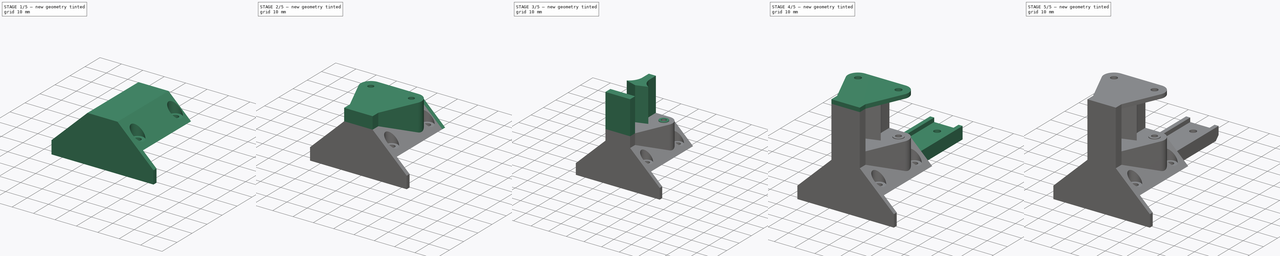
[diagram: build sequence overview — one tinted view per stage of 5, left to right]
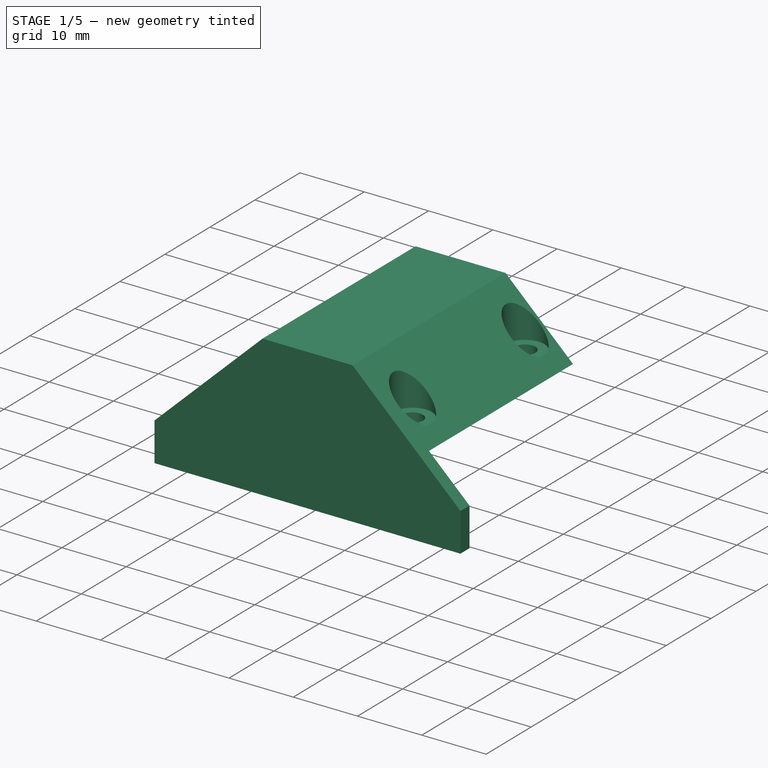
[diagram: stage 1 of 5 — iso view after this stage's code; geometry added in this stage tinted green]
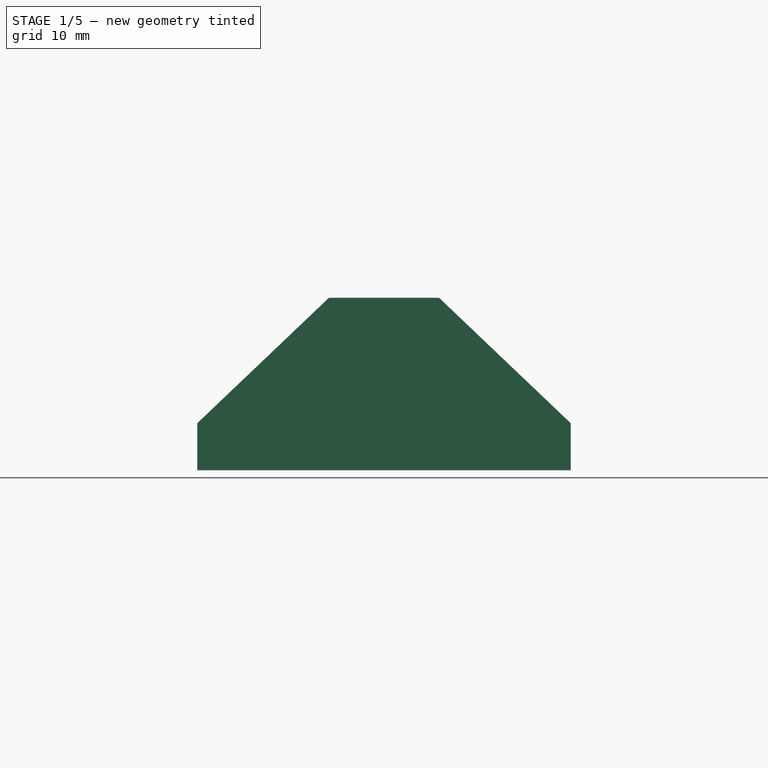
[diagram: stage 1 of 5 — front view after this stage's code; geometry added in this stage tinted green]
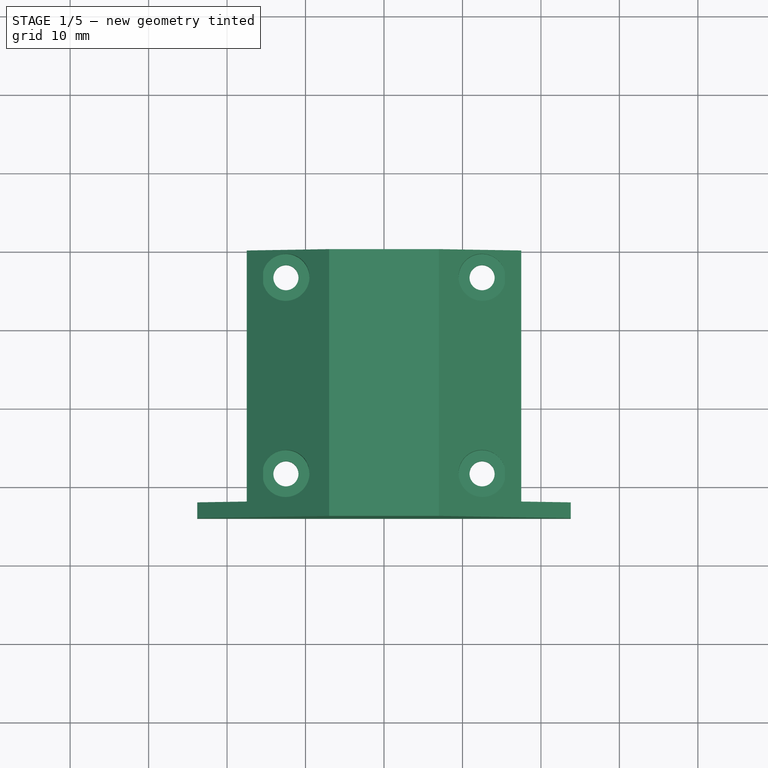
[diagram: stage 1 of 5 — top view after this stage's code; geometry added in this stage tinted green]
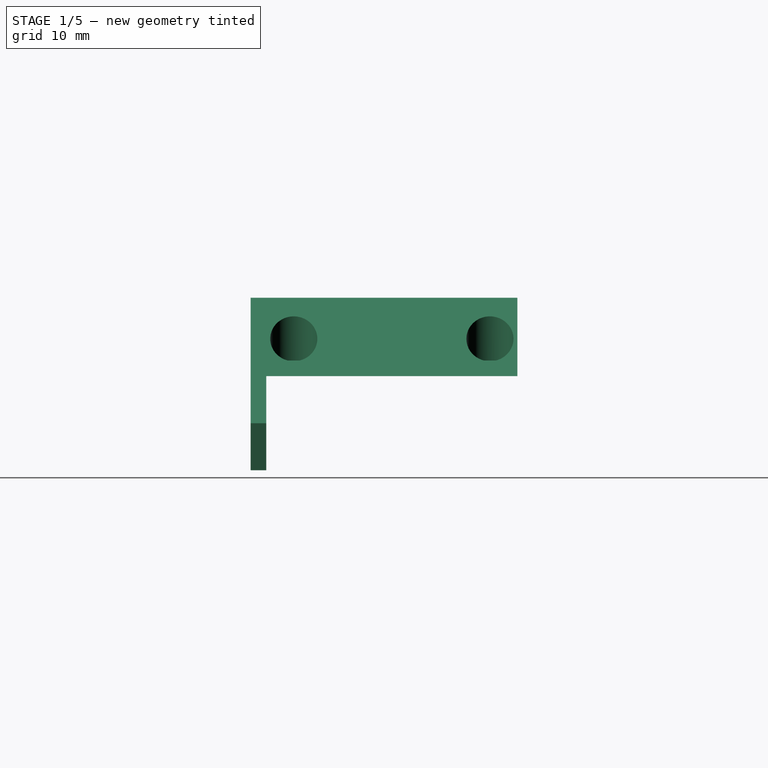
[diagram: stage 1 of 5 — right view after this stage's code; geometry added in this stage tinted green]
FCSTD DOCUMENT  (FreeCAD 0.18.1R)
Label: Rail Base
License: All rights reserved
LicenseURL: http://en.wikipedia.org/wiki/All_rights_reserved
objects: Sketcher::SketchObject×18, PartDesign::Pad×12, PartDesign::Pocket×6, PartDesign::Chamfer×3, PartDesign::Mirrored×1, Spreadsheet::Sheet×1, PartDesign::Body×1
note: 59 computed .brp shape members not serialized (recipe doc carries the construction recipe); baked Part::Feature solids carry a one-line shape summary decoded from their .brp

FEATURE [Sketcher::SketchObject] Sketch  label="Sketch Base"
  MapMode = 5
  Placement = pos=(0,0,0) rot=(1,0,0;1.5708rad)
  Support = -> [XZ_Plane]
  sketch-geometry (8):
    g0: LineSegment StartX=17.5 StartY=0 StartZ=0 EndX=7 EndY=10 EndZ=0
    g1: LineSegment StartX=7 StartY=10 StartZ=0 EndX=-7 EndY=10 EndZ=0
    g2: LineSegment StartX=-7 StartY=10 StartZ=0 EndX=-17.5 EndY=0 EndZ=0
    g3: LineSegment StartX=-17.5 StartY=0 StartZ=0 EndX=-6 EndY=0 EndZ=0
    g4: LineSegment StartX=-6 StartY=0 StartZ=0 EndX=-6 EndY=8 EndZ=0
    g5: LineSegment StartX=-6 StartY=8 StartZ=0 EndX=6 EndY=8 EndZ=0
    g6: LineSegment StartX=6 StartY=8 StartZ=0 EndX=6 EndY=0 EndZ=0
    g7: LineSegment StartX=6 StartY=0 StartZ=0 EndX=17.5 EndY=0 EndZ=0
  constraints (24):
    c: PointOnObject(g2,g-1)
    c: PointOnObject(g0,g-1)
    c: Coincident(g0,g1)
    c: Horizontal(g1)
    c: Coincident(g1,g2)
    c: Equal(g2,g0)
    c: Distance(g1) = 14
    c: Distance(g0,g-1) = 17.5
    c: Coincident(g2,g3)
    c: PointOnObject(g3,g-1)
    c: Coincident(g3,g4)
    c: Vertical(g4)
    c: Coincident(g4,g5)
    c: Horizontal(g5)
    c: Coincident(g5,g6)
    c: PointOnObject(g6,g-1)
    c: Vertical(g6)
    c: Coincident(g6,g7)
    c: Coincident(g7,g0)
    c: Distance(g2,g0) = 35
    c: Distance(g4) = 8
    c: Distance(g5) = 12
    c: Distance(g3,g-1) = 6
    c: Distance(g0,g7) = 10
FEATURE [PartDesign::Pad] Pad  label="Base"
  Length = 32
  Length2 = 100
  Placement = pos=(0,0,0) rot=(1,0,0;1.5708rad)
  Profile = -> Sketch
  Type = 0
FEATURE [Sketcher::SketchObject] Sketch001  label="Sketch Screw Head Cuts"
  ExternalGeometry = -> [Pad]
  MapMode = 5
  Placement = pos=(0,4.4e-15,10) rot=(0,0,1;3.14159rad)
  Support = -> [Pad]
  sketch-geometry (11):
    g0: LineSegment [constr] StartX=-17.5 StartY=32 StartZ=0 EndX=17.5 EndY=0 EndZ=0
    g1: LineSegment [constr] StartX=17.5 StartY=32 StartZ=0 EndX=-17.5 EndY=0 EndZ=0
    g2: GeomPoint X=0 Y=16 Z=0
    g3: LineSegment [constr] StartX=-12.5 StartY=28.5 StartZ=0 EndX=12.5 EndY=28.5 EndZ=0
    g4: LineSegment [constr] StartX=12.5 StartY=28.5 StartZ=0 EndX=12.5 EndY=3.5 EndZ=0
    g5: LineSegment [constr] StartX=12.5 StartY=3.5 StartZ=0 EndX=-12.5 EndY=3.5 EndZ=0
    g6: LineSegment [constr] StartX=-12.5 StartY=3.5 StartZ=0 EndX=-12.5 EndY=28.5 EndZ=0
    g7: Circle CenterX=-12.5 CenterY=28.5 CenterZ=0 NormalX=0 NormalY=0 NormalZ=1 AngleXU=0 Radius=3
    g8: Circle CenterX=12.5 CenterY=28.5 CenterZ=0 NormalX=0 NormalY=0 NormalZ=1 AngleXU=0 Radius=3
    g9: Circle CenterX=-12.5 CenterY=3.5 CenterZ=0 NormalX=0 NormalY=0 NormalZ=1 AngleXU=0 Radius=3
    g10: Circle CenterX=12.5 CenterY=3.5 CenterZ=0 NormalX=0 NormalY=0 NormalZ=1 AngleXU=0 Radius=3
  constraints (26):
    c: Coincident(g0,g-3)
    c: Coincident(g0,g-4)
    c: Coincident(g1,g-4)
    c: Coincident(g1,g-3)
    c: PointOnObject(g2,g1)
    c: PointOnObject(g2,g0)
    c: Coincident(g3,g4)
    c: Coincident(g4,g5)
    c: Coincident(g5,g6)
    c: Coincident(g6,g3)
    c: Horizontal(g3)
    c: Horizontal(g5)
    c: Vertical(g4)
    c: Vertical(g6)
    c: Distance(g4) = 25
    c: Distance(g5) = 25
    c: Distance(g2,g4) = 12.5
    c: Distance(g2,g5) = 12.5
    c: Coincident(g7,g3)
    c: Coincident(g8,g3)
    c: Coincident(g9,g5)
    c: Coincident(g10,g4)
    c: Equal(g9,g7)
    c: Equal(g7,g8)
    c: Equal(g8,g10)
    c: Radius(g7) = 3
FEATURE [PartDesign::Pocket] Pocket  label="Screw Head Cuts"
  BaseFeature = -> Pad
  Length = 8
  Length2 = 100
  Placement = pos=(0,0,0) rot=(1,0,0;1.5708rad)
  Profile = -> Sketch001
  Type = 0
FEATURE [Sketcher::SketchObject] Sketch002  label="Sketch Block Holes"
  ExternalGeometry = -> [Pocket]
  MapMode = 5
  Placement = pos=(0,4.4e-15,10) rot=(0,0,1;3.14159rad)
  Support = -> [Pocket]
  expr: Constraints[7] = Screws.m3D
  sketch-geometry (4):
    g0: Circle CenterX=-12.5 CenterY=28.5 CenterZ=0 NormalX=0 NormalY=0 NormalZ=1 AngleXU=0 Radius=1.6
    g1: Circle CenterX=12.5 CenterY=28.5 CenterZ=0 NormalX=0 NormalY=0 NormalZ=1 AngleXU=0 Radius=1.6
    g2: Circle CenterX=-12.5 CenterY=3.5 CenterZ=0 NormalX=0 NormalY=0 NormalZ=1 AngleXU=0 Radius=1.6
    g3: Circle CenterX=12.5 CenterY=3.5 CenterZ=0 NormalX=0 NormalY=0 NormalZ=1 AngleXU=0 Radius=1.6
  constraints (8):
    c: Coincident(g0,g-3)
    c: Coincident(g1,g-6)
    c: Coincident(g2,g-4)
    c: Coincident(g3,g-5)
    c: Equal(g0,g1)
    c: Equal(g1,g2)
    c: Equal(g2,g3)
    c: Diameter(g0) = 3.2
FEATURE [PartDesign::Pocket] Pocket001  label="Block Holes"
  BaseFeature = -> Pocket
  Length = 5
  Length2 = 100
  Placement = pos=(0,0,0) rot=(1,0,0;1.5708rad)
  Profile = -> Sketch002
  Type = 1
FEATURE [Sketcher::SketchObject] Sketch003  label="Sketch Back Wall"
  ExternalGeometry = -> [Pocket001]
  MapMode = 5
  Placement = pos=(0,-32,7e-15) rot=(1,0,0;1.5708rad)
  Support = -> [Pocket001]
  sketch-geometry (6):
    g0: LineSegment StartX=-7 StartY=10 StartZ=0 EndX=7 EndY=10 EndZ=0
    g1: LineSegment StartX=23.8 StartY=-12 StartZ=0 EndX=-23.8 EndY=-12 EndZ=0
    g2: LineSegment StartX=-7 StartY=10 StartZ=0 EndX=-23.8 EndY=-6 EndZ=0
    g3: LineSegment StartX=-23.8 StartY=-6 StartZ=0 EndX=-23.8 EndY=-12 EndZ=0
    g4: LineSegment StartX=7 StartY=10 StartZ=0 EndX=23.8 EndY=-6 EndZ=0
    g5: LineSegment StartX=23.8 StartY=-6 StartZ=0 EndX=23.8 EndY=-12 EndZ=0
  constraints (17):
    c: Coincident(g0,g-4)
    c: Horizontal(g1)
    c: Distance(g-1,g1) = 12
    c: Coincident(g2,g3)
    c: Vertical(g3)
    c: Coincident(g4,g5)
    c: Vertical(g5)
    c: Coincident(g1,g3)
    c: Coincident(g1,g5)
    c: Equal(g3,g5)
    c: Distance(g5) = 6
    c: Coincident(g0,g2)
    c: PointOnObject(g-3,g2)
    c: PointOnObject(g-4,g4)
    c: Coincident(g4,g0)
    c: Coincident(g0,g-3)
    c: DistanceX(g-1,g1) = 23.8
FEATURE [PartDesign::Pad] Pad001  label="Back Wall"
  BaseFeature = -> Pocket001
  Length = 2
  Length2 = 100
  Placement = pos=(0,0,0) rot=(1,0,0;1.5708rad)
  Profile = -> Sketch003
  Type = 0
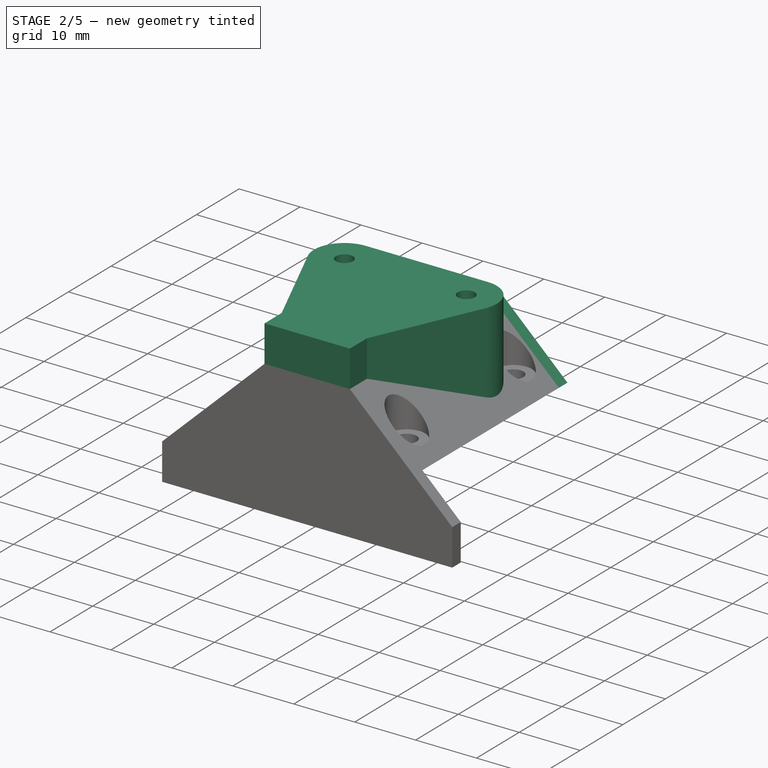
[diagram: stage 2 of 5 — iso view after this stage's code; geometry added in this stage tinted green]
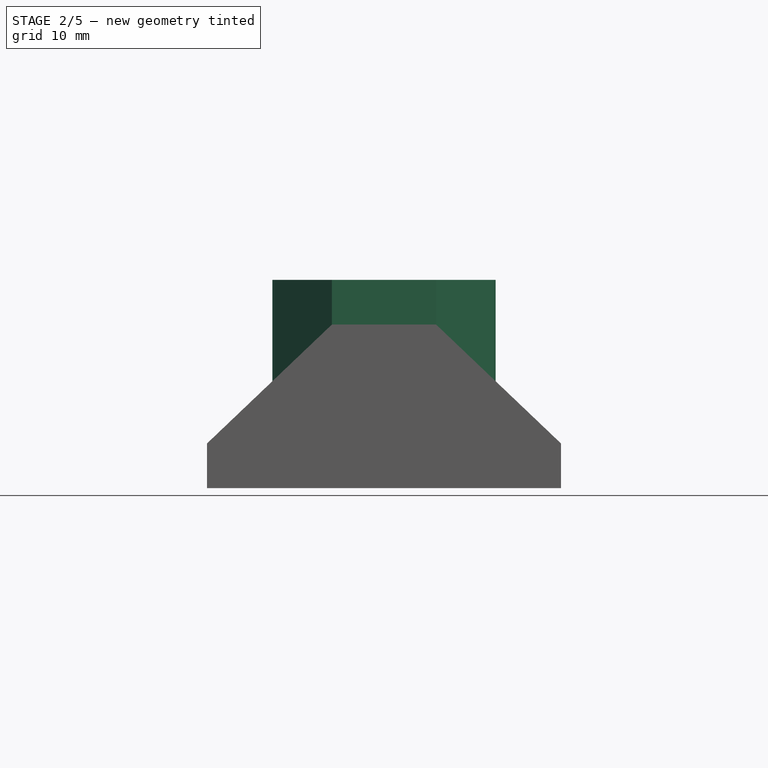
[diagram: stage 2 of 5 — front view after this stage's code; geometry added in this stage tinted green]
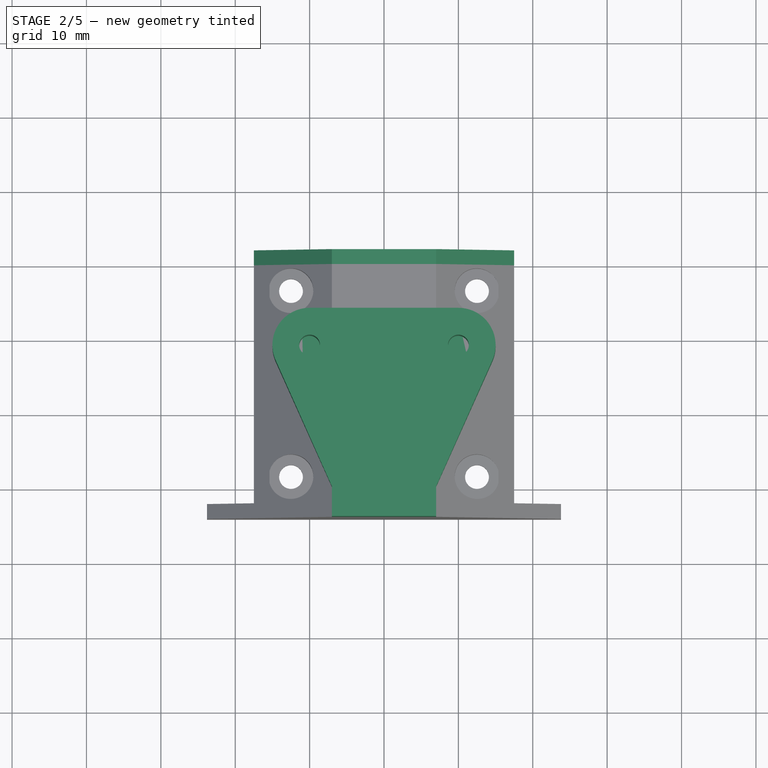
[diagram: stage 2 of 5 — top view after this stage's code; geometry added in this stage tinted green]
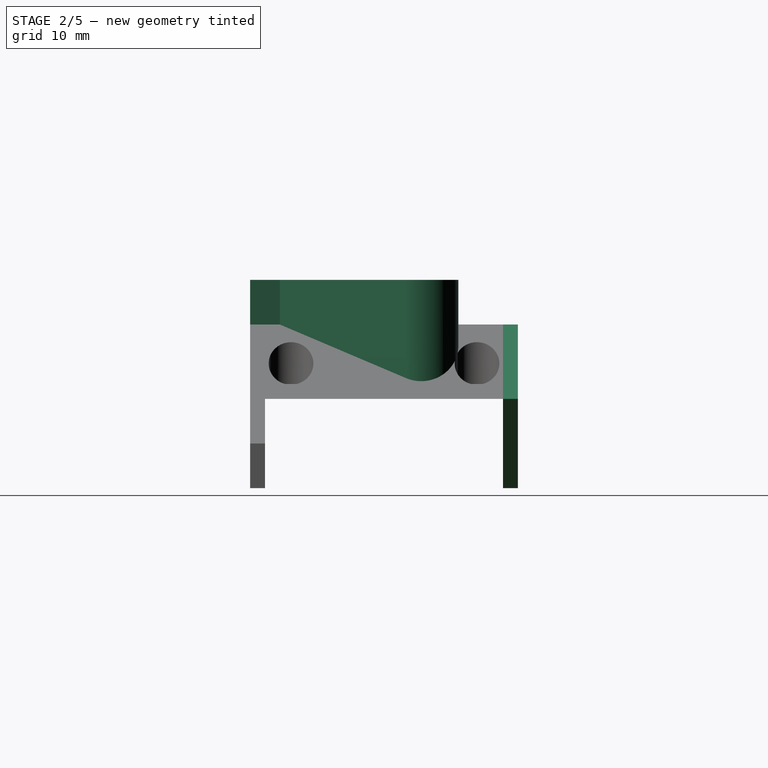
[diagram: stage 2 of 5 — right view after this stage's code; geometry added in this stage tinted green]
FEATURE [Sketcher::SketchObject] Sketch004  label="Sketch Front Wall"
  ExternalGeometry = -> [Pad001]
  MapMode = 5
  Placement = pos=(0,0,0) rot=(-1,0,0;1.5708rad)
  Support = -> [Pad001]
  sketch-geometry (9):
    g0: LineSegment StartX=0 StartY=12 StartZ=0 EndX=-17.5 EndY=0 EndZ=0
    g1: LineSegment StartX=-17.5 StartY=0 StartZ=0 EndX=-7 EndY=-10 EndZ=0
    g2: LineSegment StartX=-7 StartY=-10 StartZ=0 EndX=7 EndY=-10 EndZ=0
    g3: LineSegment StartX=7 StartY=-10 StartZ=0 EndX=17.5 EndY=0 EndZ=0
    g4: LineSegment StartX=17.5 StartY=0 StartZ=0 EndX=0 EndY=12 EndZ=0
    g5: LineSegment StartX=-6 StartY=0 StartZ=0 EndX=6 EndY=0 EndZ=0
    g6: LineSegment StartX=6 StartY=0 StartZ=0 EndX=6 EndY=-8 EndZ=0
    g7: LineSegment StartX=6 StartY=-8 StartZ=0 EndX=-6 EndY=-8 EndZ=0
    g8: LineSegment StartX=-6 StartY=-8 StartZ=0 EndX=-6 EndY=0 EndZ=0
  constraints (19):
    c: Coincident(g0,g-3)
    c: Coincident(g0,g1)
    c: Coincident(g1,g-3)
    c: Coincident(g1,g2)
    c: Coincident(g2,g-4)
    c: Coincident(g2,g3)
    c: Coincident(g3,g-4)
    c: Coincident(g3,g4)
    c: Coincident(g-5,g5)
    c: Coincident(g5,g-6)
    c: Coincident(g5,g6)
    c: Coincident(g6,g-6)
    c: Coincident(g6,g7)
    c: Coincident(g7,g-5)
    c: Coincident(g7,g8)
    c: Coincident(g8,g5)
    c: Coincident(g0,g4)
    c: PointOnObject(g0,g-2)
    c: DistanceY(g-1,g0) = 12
FEATURE [PartDesign::Pad] Pad002  label="Front Wall"
  BaseFeature = -> Pad001
  Length = 2
  Length2 = 100
  Placement = pos=(0,0,0) rot=(1,0,0;1.5708rad)
  Profile = -> Sketch004
  Type = 0
FEATURE [Sketcher::SketchObject] Sketch007  label="Sketch Side Pad"
  ExternalGeometry = -> [Pad002]
  MapMode = 5
  Placement = pos=(0,7e-15,10) rot=(0,0,1;3.14159rad)
  sketch-geometry (5):
    g0: LineSegment StartX=-7 StartY=6 StartZ=0 EndX=-7 EndY=30 EndZ=0
    g1: LineSegment StartX=-7 StartY=30 StartZ=0 EndX=-14.5663 EndY=13.0368 EndZ=0
    g2: LineSegment StartX=-7 StartY=6 StartZ=0 EndX=-10 EndY=6 EndZ=0
    g3: ArcOfCircle CenterX=-10 CenterY=11 CenterZ=0 NormalX=0 NormalY=0 NormalZ=1 AngleXU=0 Radius=5 StartAngle=2.72203 EndAngle=4.71239
    g4: LineSegment [constr] StartX=-16 StartY=16 StartZ=0 EndX=16 EndY=16 EndZ=0
  constraints (14):
    c: Coincident(g1,g0)
    c: Coincident(g2,g0)
    c: Horizontal(g2)
    c: Tangent(g3,g1) = -1.5708
    c: Tangent(g3,g2) = 1.5708
    c: Distance(g3,g-2) = 10
    c: Distance(g3,g4) = 5
    c: Diameter(g3) = 10
    c: Symmetric(g4,g4,g-2)
    c: PointOnObject(g0,g-3)
    c: PointOnObject(g0,g-3)
    c: Symmetric(g-3,g-3,g4)
    c: Distance(g-3,g0) = 2
    c: Equal(g-3,g4)
FEATURE [PartDesign::Pad] Pad004  label="Side Pad"
  BaseFeature = -> Pad002
  Length = 8
  Length2 = 100
  Placement = pos=(0,0,0) rot=(1,0,0;1.5708rad)
  Profile = -> Sketch007
  Reversed = true
  Type = 1
FEATURE [PartDesign::Mirrored] Mirrored  label="Mirror Side Pad"
  BaseFeature = -> Pad004
  MirrorPlane = -> YZ_Plane
  Originals = -> [Pad004]
  Placement = pos=(0,0,0) rot=(1,0,0;1.5708rad)
FEATURE [Sketcher::SketchObject] Sketch008  label="Sketch Top Base"
  ExternalGeometry = -> [Mirrored]
  MapMode = 5
  Placement = pos=(0,7.7e-15,10) rot=(0,0,1;3.14159rad)
  Support = -> [Mirrored]
  sketch-geometry (8):
    g0: ArcOfCircle CenterX=-10 CenterY=11 CenterZ=0 NormalX=0 NormalY=0 NormalZ=1 AngleXU=0 Radius=5 StartAngle=2.72203 EndAngle=4.71239
    g1: ArcOfCircle CenterX=10 CenterY=11 CenterZ=0 NormalX=0 NormalY=0 NormalZ=1 AngleXU=0 Radius=5 StartAngle=4.71239 EndAngle=6.70274
    g2: LineSegment StartX=7 StartY=30 StartZ=0 EndX=14.5663 EndY=13.0368 EndZ=0
    g3: LineSegment StartX=-10 StartY=6 StartZ=0 EndX=10 EndY=6 EndZ=0
    g4: LineSegment StartX=-14.5663 StartY=13.0368 StartZ=0 EndX=-7 EndY=30 EndZ=0
    g5: LineSegment StartX=-7 StartY=30 StartZ=0 EndX=-7 EndY=34 EndZ=0
    g6: LineSegment StartX=-7 StartY=34 StartZ=0 EndX=7 EndY=34 EndZ=0
    g7: LineSegment StartX=7 StartY=34 StartZ=0 EndX=7 EndY=30 EndZ=0
  constraints (18):
    c: Coincident(g5,g6)
    c: Coincident(g5,g-6)
    c: Coincident(g7,g6)
    c: Coincident(g7,g-6)
    c: Coincident(g-5,g2)
    c: Coincident(g-5,g7)
    c: Coincident(g5,g4)
    c: Coincident(g5,g-4)
    c: Coincident(g4,g0)
    c: Coincident(g4,g-3)
    c: Coincident(g0,g3)
    c: Coincident(g0,g-3)
    c: Coincident(g1,g3)
    c: Coincident(g1,g-7)
    c: Coincident(g2,g-7)
    c: Coincident(g2,g1)
    c: Equal(g0,g-3)
    c: Equal(g1,g-7)
FEATURE [PartDesign::Pad] Pad005  label="Top Base"
  BaseFeature = -> Mirrored
  Length = 6
  Length2 = 100
  Placement = pos=(0,0,0) rot=(1,0,0;1.5708rad)
  Profile = -> Sketch008
  Type = 0
FEATURE [Sketcher::SketchObject] Sketch009  label="Sketch Bottom Holes"
  ExternalGeometry = -> [Pad005]
  MapMode = 5
  Placement = pos=(0,1.39e-14,16) rot=(0,0,1;3.14159rad)
  Support = -> [Pad005]
  expr: Constraints[1] = Screws.m3d
  sketch-geometry (2):
    g0: Circle CenterX=-10 CenterY=11 CenterZ=0 NormalX=0 NormalY=0 NormalZ=1 AngleXU=0 Radius=1.4
    g1: Circle CenterX=10 CenterY=11 CenterZ=0 NormalX=0 NormalY=0 NormalZ=1 AngleXU=0 Radius=1.4
  constraints (4):
    c: Equal(g0,g1)
    c: Diameter(g0) = 2.8
    c: Coincident(g0,g-3)
    c: Coincident(g-4,g1)
FEATURE [PartDesign::Pocket] Pocket003  label="Bottom Holes"
  BaseFeature = -> Pad005
  Length = 10
  Length2 = 100
  Placement = pos=(0,0,0) rot=(1,0,0;1.5708rad)
  Profile = -> Sketch009
  Type = 0
  expr: Length = Screws.m3l - 20mm
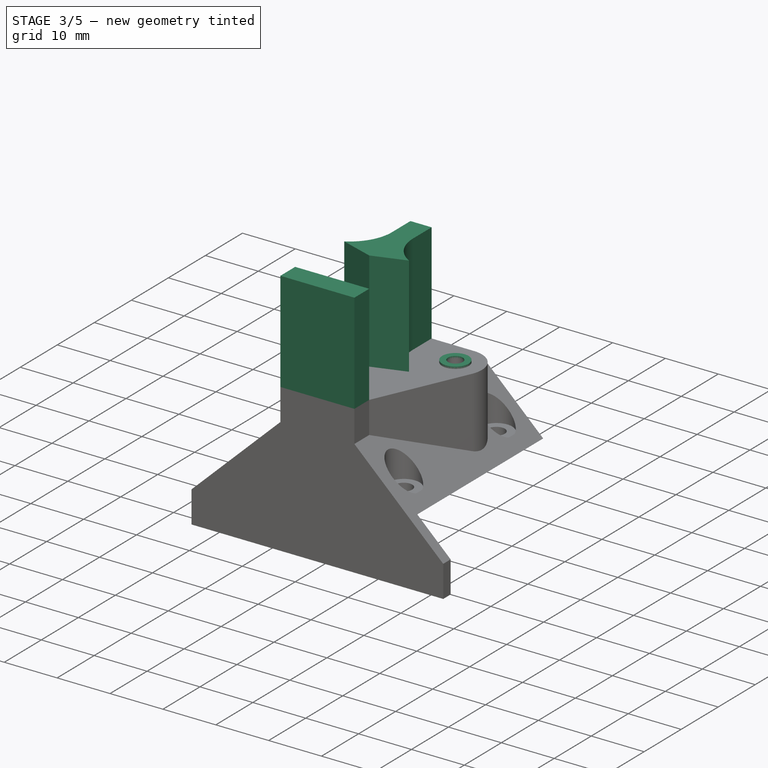
[diagram: stage 3 of 5 — iso view after this stage's code; geometry added in this stage tinted green]
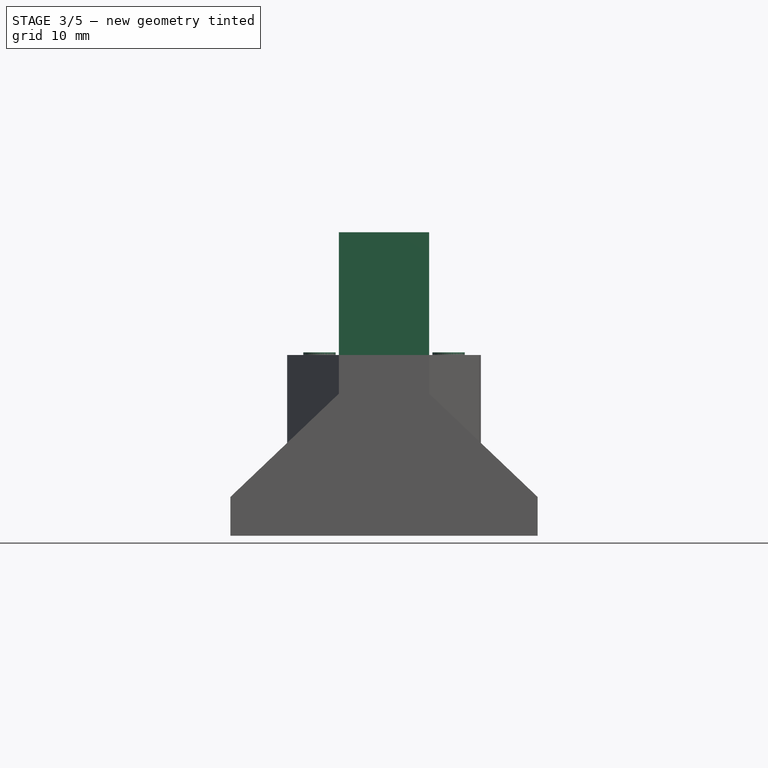
[diagram: stage 3 of 5 — front view after this stage's code; geometry added in this stage tinted green]
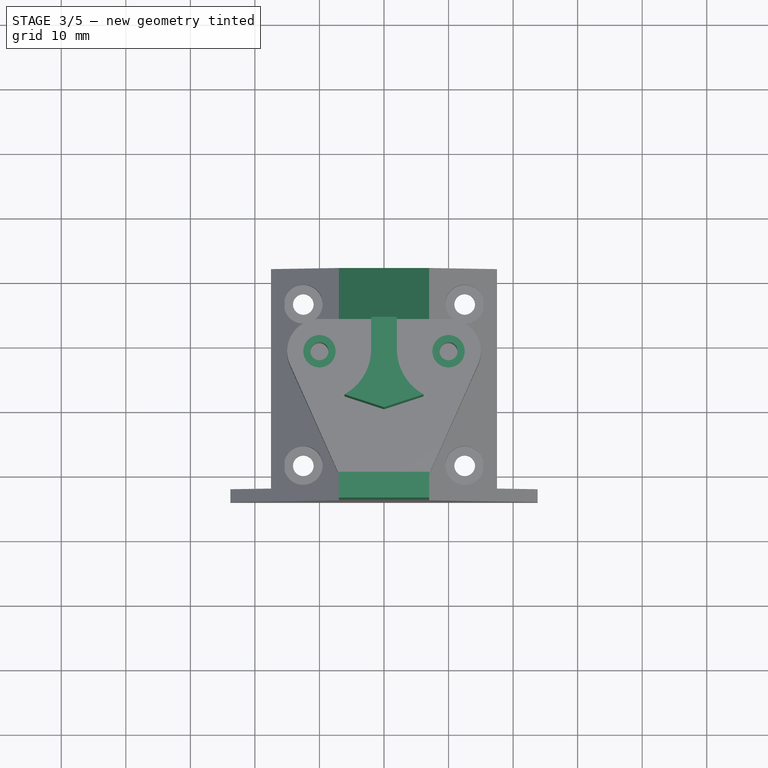
[diagram: stage 3 of 5 — top view after this stage's code; geometry added in this stage tinted green]
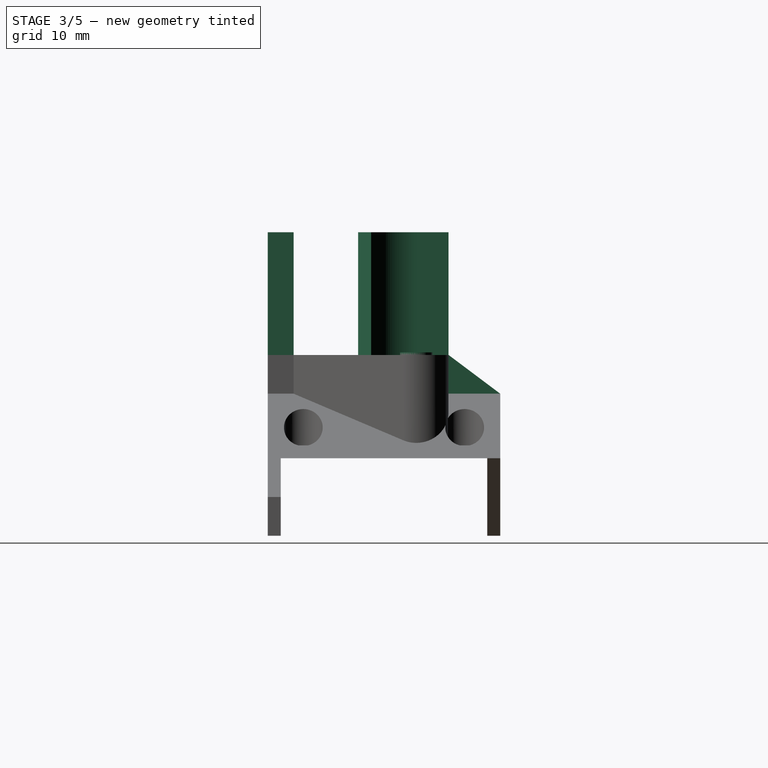
[diagram: stage 3 of 5 — right view after this stage's code; geometry added in this stage tinted green]
FEATURE [Sketcher::SketchObject] Sketch010  label="Sketch Bottom Spacers"
  ExternalGeometry = -> [Pocket003]
  MapMode = 5
  Placement = pos=(0,1.57e-14,16) rot=(0,0,1;3.14159rad)
  Support = -> [Pocket003]
  sketch-geometry (4):
    g0: Circle CenterX=10 CenterY=11 CenterZ=0 NormalX=0 NormalY=0 NormalZ=1 AngleXU=0 Radius=2.5
    g1: Circle CenterX=-10 CenterY=11 CenterZ=0 NormalX=0 NormalY=0 NormalZ=1 AngleXU=0 Radius=1.4
    g2: Circle CenterX=-10 CenterY=11 CenterZ=0 NormalX=0 NormalY=0 NormalZ=1 AngleXU=0 Radius=2.5
    g3: Circle CenterX=10 CenterY=11 CenterZ=0 NormalX=0 NormalY=0 NormalZ=1 AngleXU=0 Radius=1.4
  constraints (8):
    c: Coincident(g2,g1)
    c: Equal(g0,g2)
    c: Coincident(g3,g0)
    c: Diameter(g0) = 5
    c: Coincident(g1,g-3)
    c: Coincident(g0,g-4)
    c: Equal(g-3,g1)
    c: Equal(g-4,g3)
FEATURE [PartDesign::Pad] Pad006  label="Bottom Spacers"
  BaseFeature = -> Pocket003
  Length = 0.4
  Length2 = 100
  Placement = pos=(0,0,0) rot=(1,0,0;1.5708rad)
  Profile = -> Sketch010
  Type = 0
FEATURE [Sketcher::SketchObject] Sketch011  label="Sketch Column"
  ExternalGeometry = -> [Pad006]
  MapMode = 5
  Placement = pos=(0,1.75e-14,16) rot=(0,0,1;3.14159rad)
  Support = -> [Pad006]
  sketch-geometry (7):
    g0: LineSegment StartX=-2 StartY=11 StartZ=0 EndX=-2 EndY=6 EndZ=0
    g1: LineSegment StartX=2 StartY=6 StartZ=0 EndX=2 EndY=11 EndZ=0
    g2: ArcOfCircle CenterX=-10 CenterY=11 CenterZ=0 NormalX=0 NormalY=0 NormalZ=1 AngleXU=0 Radius=8 StartAngle=0 EndAngle=1.06544
    g3: ArcOfCircle CenterX=10 CenterY=11 CenterZ=0 NormalX=0 NormalY=0 NormalZ=1 AngleXU=0 Radius=8 StartAngle=2.07616 EndAngle=3.14159
    g4: LineSegment StartX=-2 StartY=6 StartZ=0 EndX=2 EndY=6 EndZ=0
    g5: LineSegment StartX=-6.12702 StartY=18 StartZ=0 EndX=0 EndY=20 EndZ=0
    g6: LineSegment StartX=6.12702 StartY=18 StartZ=0 EndX=0 EndY=20 EndZ=0
  constraints (18):
    c: Coincident(g4,g0)
    c: Coincident(g4,g1)
    c: Vertical(g0)
    c: Vertical(g1)
    c: Symmetric(g0,g1,g-2)
    c: Tangent(g0,g2) = 1.5708
    c: Tangent(g1,g3) = 1.5708
    c: Distance(g4) = 4
    c: Coincident(g5,g2)
    c: PointOnObject(g5,g-2)
    c: Coincident(g6,g3)
    c: Coincident(g6,g5)
    c: Horizontal(g2,g3)
    c: DistanceY(g0,g2) = 12
    c: DistanceY(g2,g5) = 2
    c: Coincident(g-6,g2)
    c: Coincident(g3,g-7)
    c: PointOnObject(g1,g-5)
FEATURE [Spreadsheet::Sheet] Spreadsheet  label="Screws"
  cells = A1=Screw Type; B1=Length; D1=Diameter Loose; F1=Diameter Tight; H1=Width Across Flats; A2=M3 Tapping; B2=m3tl; C2(m3tl)==12mm; D2=m3tD; E2(m3tD)==3.4mm; F2=m3td; G2(m3td)==2.8mm; A3=M3; B3=m3l; C3(m3l)==30mm; D3=m3D; E3(m3D)==3.2mm; F3=m3d; G3(m3d)==2.8mm; A4=M3 Nut; H4=m3S; I4(m3S)==5.6mm
FEATURE [Sketcher::SketchObject] Sketch016  label="Sketch Front Chamfer"
  ExternalGeometry = -> [Pocket003]
  MapMode = 5
  Placement = pos=(0,0,0) rot=(0.57735,0.57735,0.57735;2.0944rad)
  Support = -> [YZ_Plane]
  sketch-geometry (3):
    g0: LineSegment StartX=-6 StartY=10 StartZ=0 EndX=-6 EndY=16 EndZ=0
    g1: LineSegment StartX=-6 StartY=16 StartZ=0 EndX=2 EndY=10 EndZ=0
    g2: LineSegment StartX=2 StartY=10 StartZ=0 EndX=-6 EndY=10 EndZ=0
  constraints (6):
    c: Coincident(g0,g1)
    c: Coincident(g1,g2)
    c: Coincident(g2,g0)
    c: Coincident(g0,g-3)
    c: Coincident(g0,g-3)
    c: Coincident(g1,g-4)
FEATURE [PartDesign::Pad] Pad011  label="Front Chamfer"
  BaseFeature = -> Pad006
  Length = 14
  Length2 = 100
  Midplane = true
  Placement = pos=(0,0,0) rot=(1,0,0;1.5708rad)
  Profile = -> Sketch016
  Type = 0
FEATURE [PartDesign::Pad] Pad007  label="Column"
  BaseFeature = -> Pad011
  Length = 19
  Length2 = 100
  Placement = pos=(0,0,0) rot=(1,0,0;1.5708rad)
  Profile = -> Sketch011
  Type = 0
FEATURE [Sketcher::SketchObject] Sketch017  label="Sketch Back Plate"
  ExternalGeometry = -> [Pad007]
  MapMode = 5
  Placement = pos=(0,2.11e-14,16) rot=(0,0,1;3.14159rad)
  Support = -> [Pad007]
  sketch-geometry (4):
    g0: LineSegment StartX=-7 StartY=34 StartZ=0 EndX=7 EndY=34 EndZ=0
    g1: LineSegment StartX=7 StartY=34 StartZ=0 EndX=7 EndY=30 EndZ=0
    g2: LineSegment StartX=7 StartY=30 StartZ=0 EndX=-7 EndY=30 EndZ=0
    g3: LineSegment StartX=-7 StartY=30 StartZ=0 EndX=-7 EndY=34 EndZ=0
  constraints (10):
    c: Coincident(g0,g1)
    c: Coincident(g1,g2)
    c: Coincident(g2,g3)
    c: Coincident(g3,g0)
    c: Horizontal(g0)
    c: Horizontal(g2)
    c: Vertical(g1)
    c: Vertical(g3)
    c: Coincident(g0,g-3)
    c: Coincident(g1,g-4)
FEATURE [PartDesign::Pad] Pad012  label="Back Plate"
  BaseFeature = -> Pad007
  Length = 19
  Length2 = 100
  Placement = pos=(0,0,0) rot=(1,0,0;1.5708rad)
  Profile = -> Sketch017
  Type = 0
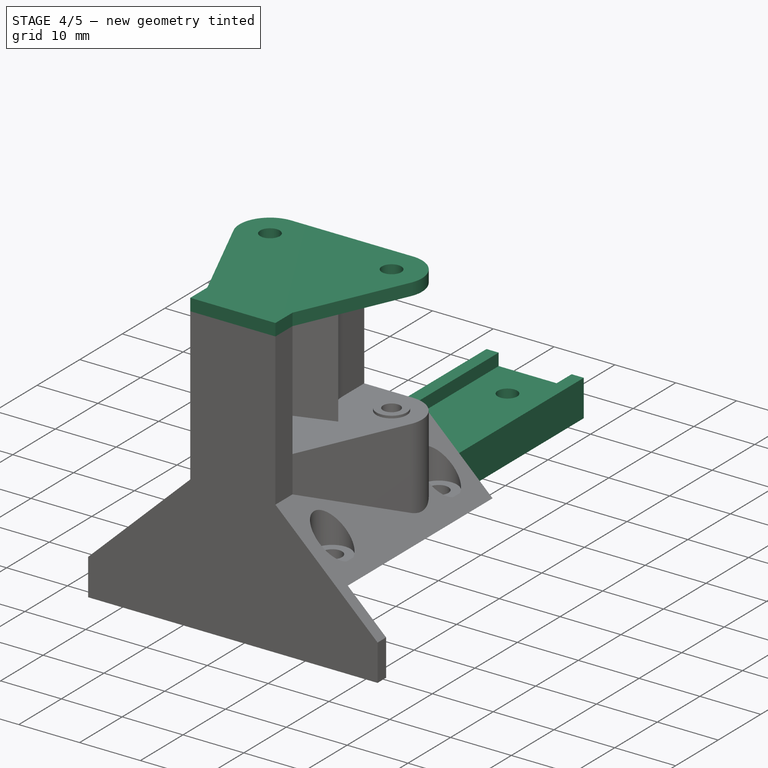
[diagram: stage 4 of 5 — iso view after this stage's code; geometry added in this stage tinted green]
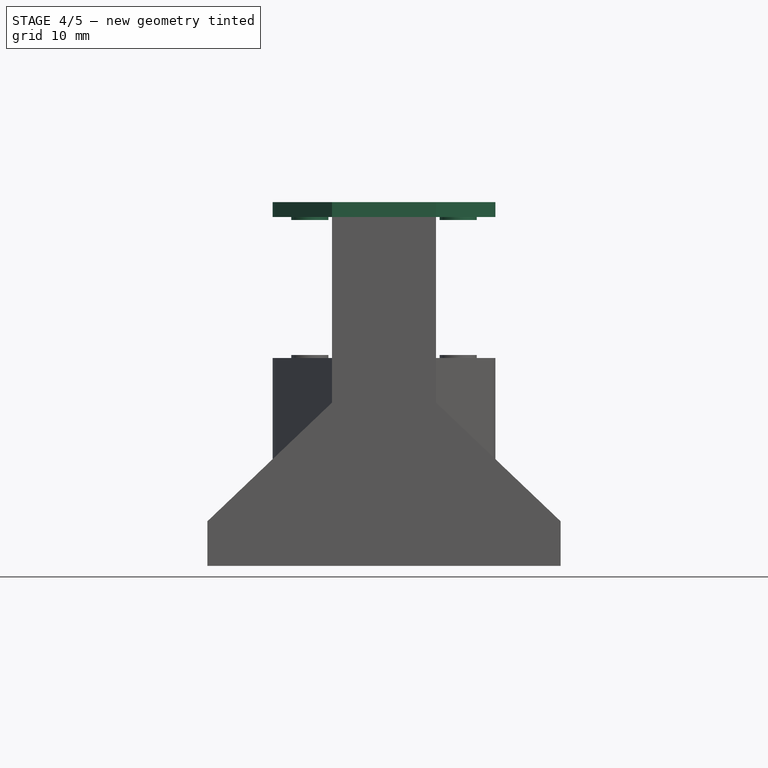
[diagram: stage 4 of 5 — front view after this stage's code; geometry added in this stage tinted green]
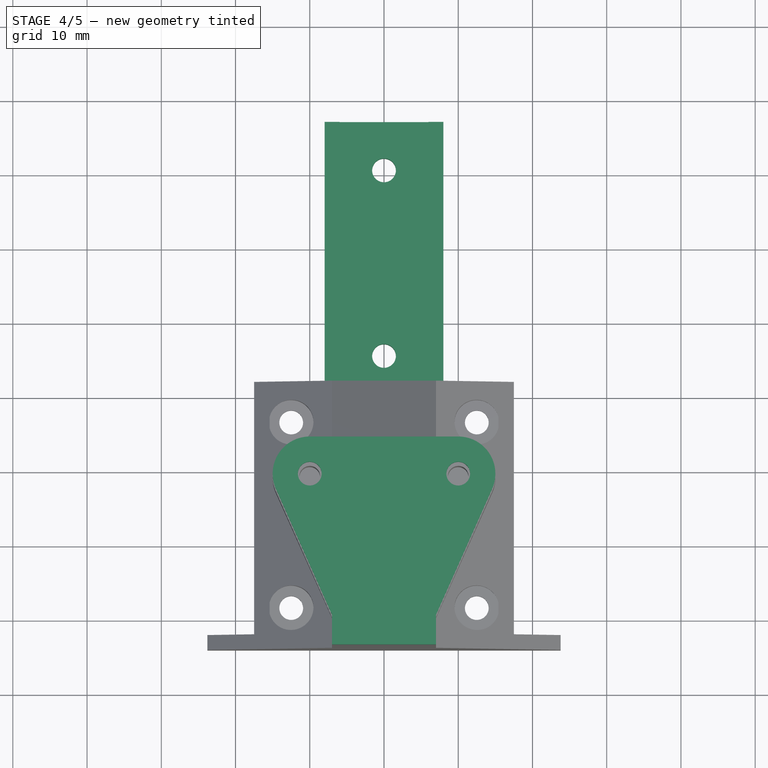
[diagram: stage 4 of 5 — top view after this stage's code; geometry added in this stage tinted green]
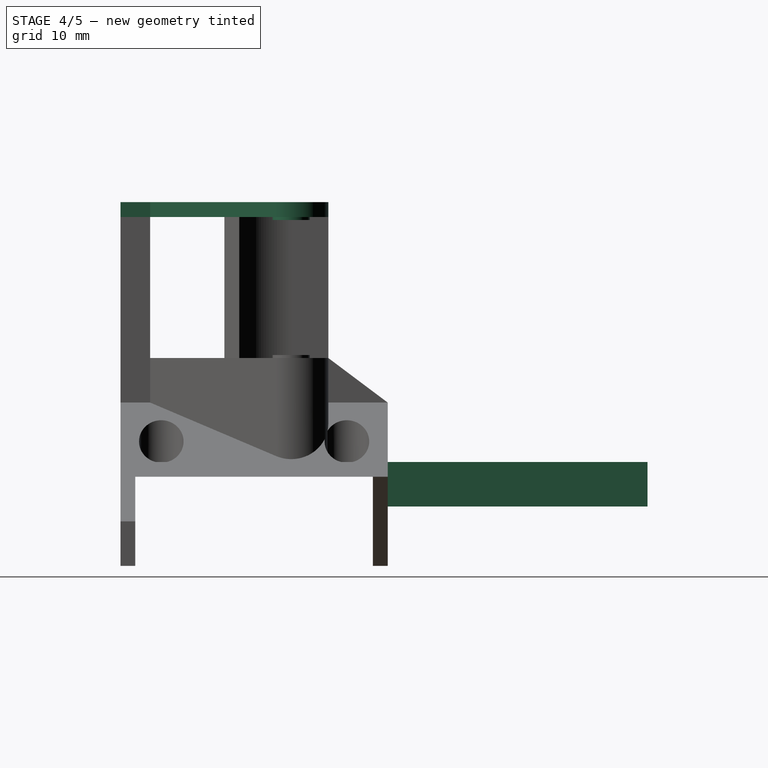
[diagram: stage 4 of 5 — right view after this stage's code; geometry added in this stage tinted green]
FEATURE [Sketcher::SketchObject] Sketch018  label="Sketch Top"
  ExternalGeometry = -> [Pad012]
  MapMode = 5
  Placement = pos=(0,4.72e-14,35) rot=(0,0,1;3.14159rad)
  Support = -> [Pad012]
  sketch-geometry (8):
    g0: LineSegment StartX=-10 StartY=6 StartZ=0 EndX=10 EndY=6 EndZ=0
    g1: LineSegment StartX=-14.5663 StartY=13.0368 StartZ=0 EndX=-7 EndY=30 EndZ=0
    g2: LineSegment StartX=-7 StartY=30 StartZ=0 EndX=-7 EndY=34 EndZ=0
    g3: LineSegment StartX=-7 StartY=34 StartZ=0 EndX=7 EndY=34 EndZ=0
    g4: LineSegment StartX=7 StartY=34 StartZ=0 EndX=7 EndY=30 EndZ=0
    g5: LineSegment StartX=7 StartY=30 StartZ=0 EndX=14.5663 EndY=13.0368 EndZ=0
    g6: ArcOfCircle CenterX=-10 CenterY=11 CenterZ=0 NormalX=0 NormalY=0 NormalZ=1 AngleXU=0 Radius=5 StartAngle=2.72203 EndAngle=4.71239
    g7: ArcOfCircle CenterX=10 CenterY=11 CenterZ=0 NormalX=0 NormalY=0 NormalZ=1 AngleXU=0 Radius=5 StartAngle=4.71239 EndAngle=6.70274
  constraints (18):
    c: Coincident(g0,g-3)
    c: Coincident(g0,g-4)
    c: Tangent(g-3,g1) = 1.5708
    c: Coincident(g1,g2)
    c: Coincident(g2,g-5)
    c: Vertical(g2)
    c: Coincident(g2,g3)
    c: Coincident(g3,g-6)
    c: Coincident(g3,g4)
    c: Coincident(g4,g-6)
    c: Coincident(g4,g5)
    c: Coincident(g5,g-4)
    c: Coincident(g6,g-3)
    c: Coincident(g6,g0)
    c: Coincident(g6,g1)
    c: Coincident(g7,g-4)
    c: Coincident(g7,g0)
    c: Coincident(g7,g5)
FEATURE [PartDesign::Pad] Pad013  label="Top"
  BaseFeature = -> Pad012
  Length = 2
  Length2 = 100
  Placement = pos=(0,0,0) rot=(1,0,0;1.5708rad)
  Profile = -> Sketch018
  Type = 0
FEATURE [Sketcher::SketchObject] Sketch019  label="Sketch Top Holes"
  ExternalGeometry = -> [Pad013]
  MapMode = 5
  Placement = pos=(0,2.6e-14,37) rot=(0,0,1;3.14159rad)
  Support = -> [Pad013]
  expr: Constraints[1] = Screws.m3D
  sketch-geometry (2):
    g0: Circle CenterX=-10 CenterY=11 CenterZ=0 NormalX=0 NormalY=0 NormalZ=1 AngleXU=0 Radius=1.6
    g1: Circle CenterX=10 CenterY=11 CenterZ=0 NormalX=0 NormalY=0 NormalZ=1 AngleXU=0 Radius=1.6
  constraints (4):
    c: Equal(g0,g1)
    c: Diameter(g0) = 3.2
    c: Coincident(g0,g-3)
    c: Coincident(g-5,g1)
FEATURE [PartDesign::Pocket] Pocket004  label="Top Holes"
  BaseFeature = -> Pad013
  Length = 5
  Length2 = 100
  Placement = pos=(0,0,0) rot=(1,0,0;1.5708rad)
  Profile = -> Sketch019
  Type = 0
FEATURE [Sketcher::SketchObject] Sketch020  label="Sketch Top Spacers"
  ExternalGeometry = -> [Pocket004]
  MapMode = 5
  Placement = pos=(0,5.63e-14,35) rot=(1,0,0;3.14159rad)
  Support = -> [Pocket004]
  sketch-geometry (4):
    g0: Circle CenterX=-10 CenterY=11 CenterZ=0 NormalX=0 NormalY=0 NormalZ=1 AngleXU=0 Radius=1.6
    g1: Circle CenterX=-10 CenterY=11 CenterZ=0 NormalX=0 NormalY=0 NormalZ=1 AngleXU=0 Radius=2.5
    g2: Circle CenterX=10 CenterY=11 CenterZ=0 NormalX=0 NormalY=0 NormalZ=1 AngleXU=0 Radius=1.6
    g3: Circle CenterX=10 CenterY=11 CenterZ=0 NormalX=0 NormalY=0 NormalZ=1 AngleXU=0 Radius=2.5
  constraints (8):
    c: Coincident(g1,g0)
    c: Coincident(g3,g2)
    c: Equal(g1,g3)
    c: Diameter(g1) = 5
    c: Equal(g0,g-4)
    c: Coincident(g0,g-4)
    c: Equal(g2,g-3)
    c: Coincident(g2,g-3)
FEATURE [PartDesign::Pad] Pad014  label="Top Spacers"
  BaseFeature = -> Pocket004
  Length = 0.4
  Length2 = 100
  Placement = pos=(0,0,0) rot=(1,0,0;1.5708rad)
  Profile = -> Sketch020
  Type = 0
FEATURE [Sketcher::SketchObject] Sketch021  label="Sketch Pad"
  ExternalGeometry = -> [Pad014]
  MapMode = 5
  Placement = pos=(0,2,-2.9e-15) rot=(-1,0,0;1.5708rad)
  Support = -> [Pad014]
  sketch-geometry (8):
    g0: LineSegment StartX=6 StartY=-2 StartZ=0 EndX=6 EndY=0 EndZ=0
    g1: LineSegment StartX=6 StartY=0 StartZ=0 EndX=-6 EndY=0 EndZ=0
    g2: LineSegment StartX=-6 StartY=0 StartZ=0 EndX=-6 EndY=-2 EndZ=0
    g3: LineSegment StartX=-6 StartY=-2 StartZ=0 EndX=-8 EndY=-2 EndZ=0
    g4: LineSegment StartX=-8 StartY=-2 StartZ=0 EndX=-8 EndY=4 EndZ=0
    g5: LineSegment StartX=-8 StartY=4 StartZ=0 EndX=8 EndY=4 EndZ=0
    g6: LineSegment StartX=8 StartY=4 StartZ=0 EndX=8 EndY=-2 EndZ=0
    g7: LineSegment StartX=8 StartY=-2 StartZ=0 EndX=6 EndY=-2 EndZ=0
  constraints (22):
    c: PointOnObject(g0,g-3)
    c: Coincident(g0,g-3)
    c: Coincident(g0,g1)
    c: Coincident(g1,g-4)
    c: Coincident(g1,g2)
    c: PointOnObject(g2,g-4)
    c: Coincident(g2,g3)
    c: Horizontal(g3)
    c: Coincident(g3,g4)
    c: Vertical(g4)
    c: Coincident(g4,g5)
    c: Horizontal(g5)
    c: Coincident(g5,g6)
    c: Vertical(g6)
    c: Coincident(g6,g7)
    c: Coincident(g7,g0)
    c: Horizontal(g7)
    c: Horizontal(g0,g2)
    c: Equal(g7,g3)
    c: Distance(g7) = 2
    c: Distance(g0) = 2
    c: Distance(g0,g5) = 4
FEATURE [PartDesign::Pad] Pad015  label="Pad"
  BaseFeature = -> Pad014
  Length = 35
  Length2 = 100
  Placement = pos=(0,0,0) rot=(1,0,0;1.5708rad)
  Profile = -> Sketch021
  Type = 0
FEATURE [Sketcher::SketchObject] Sketch022  label="Sketch Pad Holes"
  MapMode = 5
  Placement = pos=(0,0,0) rot=(0,0,1;3.14159rad)
  Support = -> [Pad015]
  expr: Constraints[5] = Screws.m3D
  sketch-geometry (2):
    g0: Circle CenterX=0 CenterY=-5.5 CenterZ=0 NormalX=0 NormalY=0 NormalZ=1 AngleXU=0 Radius=1.6
    g1: Circle CenterX=0 CenterY=-30.5 CenterZ=0 NormalX=0 NormalY=0 NormalZ=1 AngleXU=0 Radius=1.6
  constraints (6):
    c: PointOnObject(g0,g-2)
    c: PointOnObject(g1,g-2)
    c: Equal(g1,g0)
    c: Distance(g0,g1) = 25
    c: Distance(g-1,g0) = 5.5
    c: Diameter(g1) = 3.2
FEATURE [PartDesign::Pocket] Pocket005  label="Pad Holes"
  BaseFeature = -> Pad015
  Length = 5
  Length2 = 100
  Placement = pos=(0,0,0) rot=(1,0,0;1.5708rad)
  Profile = -> Sketch022
  Type = 1
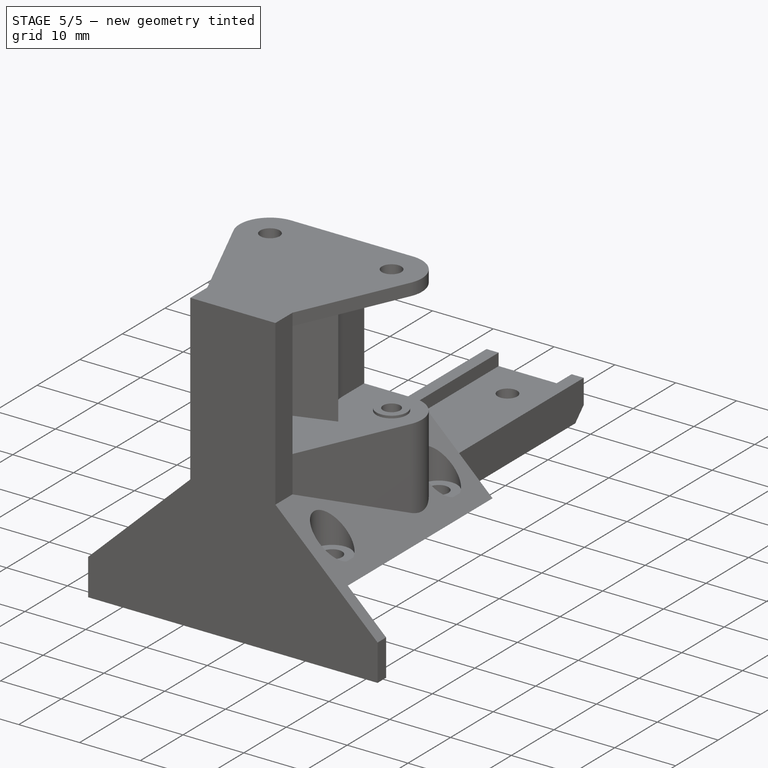
[diagram: stage 5 of 5 — iso view after this stage's code; geometry added in this stage tinted green]
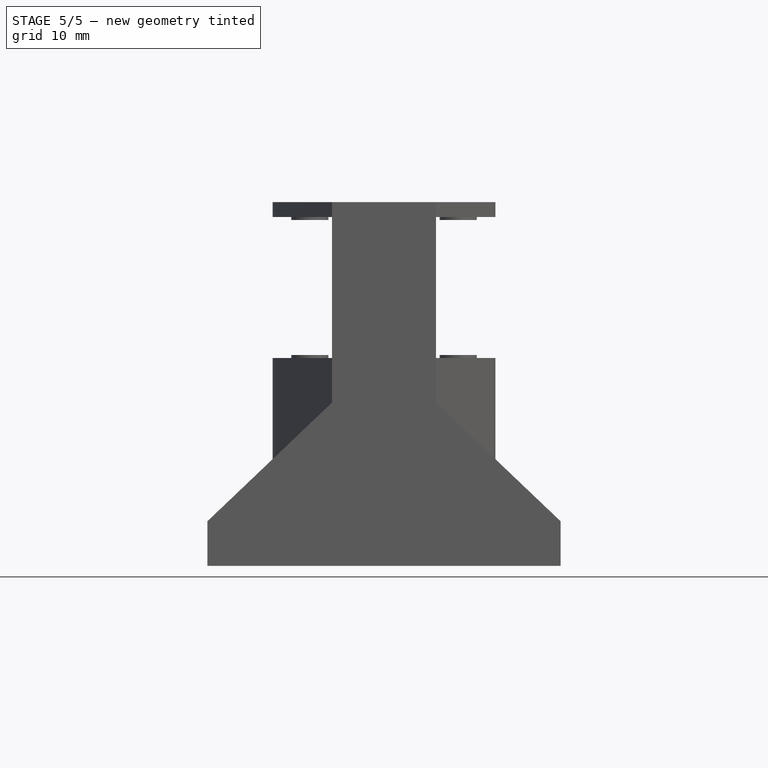
[diagram: stage 5 of 5 — front view after this stage's code; geometry added in this stage tinted green]
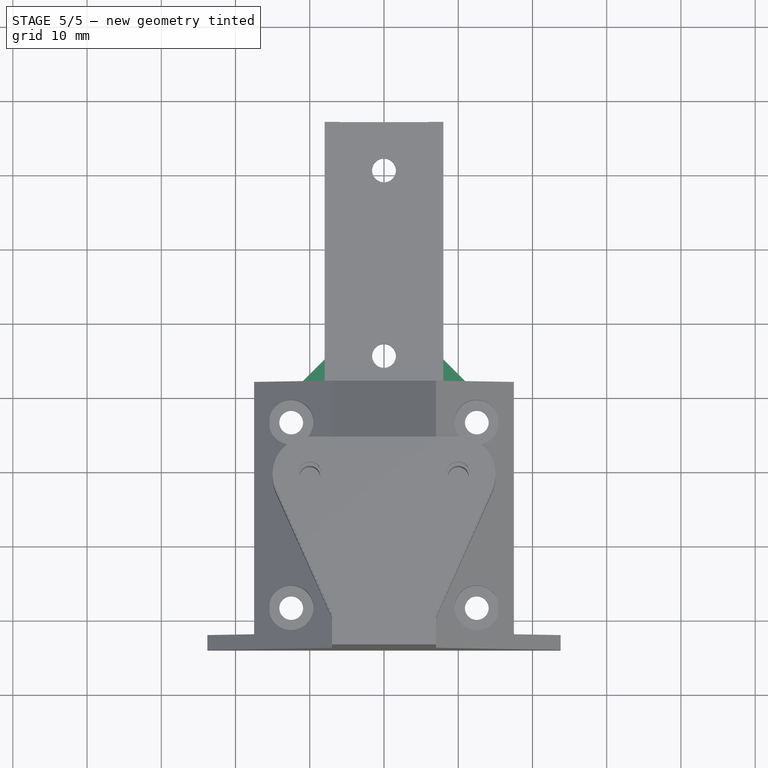
[diagram: stage 5 of 5 — top view after this stage's code; geometry added in this stage tinted green]
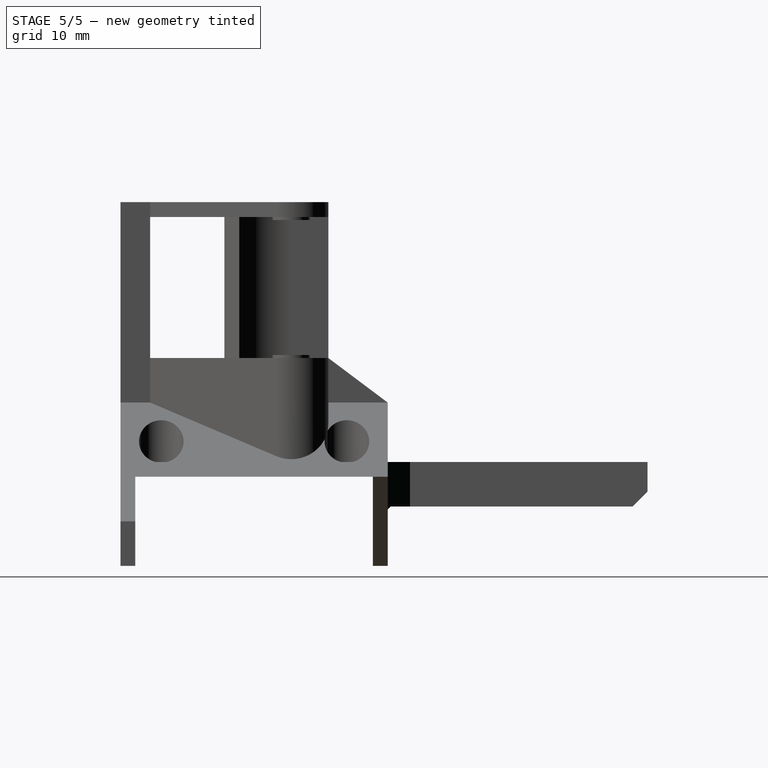
[diagram: stage 5 of 5 — right view after this stage's code; geometry added in this stage tinted green]
FEATURE [Sketcher::SketchObject] Sketch023  label="Sketch Nut Cuts"
  ExternalGeometry = -> [Pocket005]
  MapMode = 5
  Placement = pos=(0,-6.4e-15,-4) rot=(1,0,0;3.14159rad)
  Support = -> [Pocket005]
  expr: Constraints[37] = Screws.m3S
  sketch-geometry (14):
    g0: LineSegment StartX=-3.23316 StartY=-5.5 StartZ=0 EndX=-1.61658 EndY=-8.3 EndZ=0
    g1: LineSegment StartX=-1.61658 StartY=-8.3 StartZ=0 EndX=1.61658 EndY=-8.3 EndZ=0
    g2: LineSegment StartX=1.61658 StartY=-8.3 StartZ=0 EndX=3.23316 EndY=-5.5 EndZ=0
    g3: LineSegment StartX=3.23316 StartY=-5.5 StartZ=0 EndX=1.61658 EndY=-2.7 EndZ=0
    g4: LineSegment StartX=1.61658 StartY=-2.7 StartZ=0 EndX=-1.61658 EndY=-2.7 EndZ=0
    g5: LineSegment StartX=-1.61658 StartY=-2.7 StartZ=0 EndX=-3.23316 EndY=-5.5 EndZ=0
    g6: Circle [constr] CenterX=0 CenterY=-5.5 CenterZ=0 NormalX=0 NormalY=0 NormalZ=1 AngleXU=0 Radius=3.23316
    g7: LineSegment StartX=-3.23316 StartY=-30.5 StartZ=0 EndX=-1.61658 EndY=-33.3 EndZ=0
    g8: LineSegment StartX=-1.61658 StartY=-33.3 StartZ=0 EndX=1.61658 EndY=-33.3 EndZ=0
    g9: LineSegment StartX=1.61658 StartY=-33.3 StartZ=0 EndX=3.23316 EndY=-30.5 EndZ=0
    g10: LineSegment StartX=3.23316 StartY=-30.5 StartZ=0 EndX=1.61658 EndY=-27.7 EndZ=0
    g11: LineSegment StartX=1.61658 StartY=-27.7 StartZ=0 EndX=-1.61658 EndY=-27.7 EndZ=0
    g12: LineSegment StartX=-1.61658 StartY=-27.7 StartZ=0 EndX=-3.23316 EndY=-30.5 EndZ=0
    g13: Circle [constr] CenterX=0 CenterY=-30.5 CenterZ=0 NormalX=0 NormalY=0 NormalZ=1 AngleXU=0 Radius=3.23316
  constraints (32):
    c: Coincident(g0,g1)
    c: Coincident(g1,g2)
    c: Coincident(g2,g3)
    c: Coincident(g3,g4)
    c: Coincident(g4,g5)
    c: Coincident(g5,g0)
    c: Equal(g0, g1-g5) x5
    c: PointOnObject(g0,g6)
    c: PointOnObject(g1,g6)
    c: PointOnObject(g2,g6)
    c: PointOnObject(g3,g6)
    c: PointOnObject(g4,g6)
    c: PointOnObject(g5,g6)
    c: Coincident(g7,g8)
    c: Coincident(g8,g9)
    c: Coincident(g9,g10)
    c: Coincident(g10,g11)
    c: Coincident(g11,g12)
    c: Coincident(g12,g7)
    c: Equal(g7, g8-g12) x5
    c: PointOnObject(g7,g13)
    c: PointOnObject(g8,g13)
    c: PointOnObject(g9,g13)
    c: PointOnObject(g10,g13)
    c: PointOnObject(g11,g13)
    c: PointOnObject(g12,g13)
    c: Horizontal(g11)
    c: Horizontal(g1)
    c: Equal(g1,g11)
    c: Distance(g4,g0) = 5.6
    c: Coincident(g-3,g6)
    c: Coincident(g13,g-4)
FEATURE [PartDesign::Pocket] Pocket006  label="Nut Cuts"
  BaseFeature = -> Pocket005
  Length = 2
  Length2 = 100
  Placement = pos=(0,0,0) rot=(1,0,0;1.5708rad)
  Profile = -> Sketch023
  Type = 0
FEATURE [PartDesign::Chamfer] Chamfer  label="Sides Chamfers"
  Base = -> Pocket006 [Edge63,Edge61]
  BaseFeature = -> Pocket006
  Placement = pos=(0,0,0) rot=(1,0,0;1.5708rad)
  Size = 3
FEATURE [PartDesign::Chamfer] Chamfer001  label="Bottom Chamfer"
  Base = -> Chamfer [Edge7]
  BaseFeature = -> Chamfer
  Placement = pos=(0,0,0) rot=(1,0,0;1.5708rad)
  Size = 0.4
FEATURE [PartDesign::Chamfer] Chamfer002  label="Tip Chamfer"
  Base = -> Chamfer001 [Edge63]
  BaseFeature = -> Chamfer001
  Placement = pos=(0,0,0) rot=(1,0,0;1.5708rad)
  Size = 2
FEATURE [PartDesign::Body] Body  label="Rail Base"
  Group = -> [Sketch,Pad,Sketch001,Pocket,Sketch002,Pocket001,Sketch003,Pad001,Sketch004,Pad002,Sketch007,Pad004,Mirrored,Sketch008,Pad005,Sketch009,Pocket003,Sketch010,Pad006,Pad011,Sketch011,Pad007,Sketch016,Sketch017,Pad012,Sketch018,Pad013,Sketch019,Pocket004,Sketch020,Pad014,Sketch021,Pad015,Sketch022,Pocket005,Sketch023,Pocket006,Chamfer,Chamfer001,Chamfer002]
  Origin = -> Origin
  Placement = pos=(0,0,0) rot=(1,0,0;1.5708rad)
  Tip = -> Chamfer002
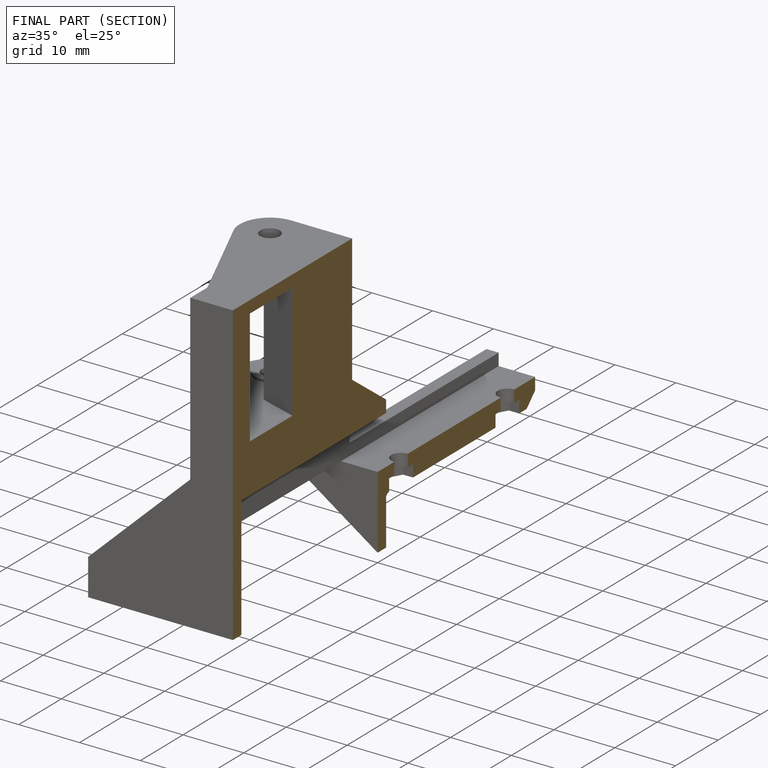
[diagram: finished part — half-section view (interior)]
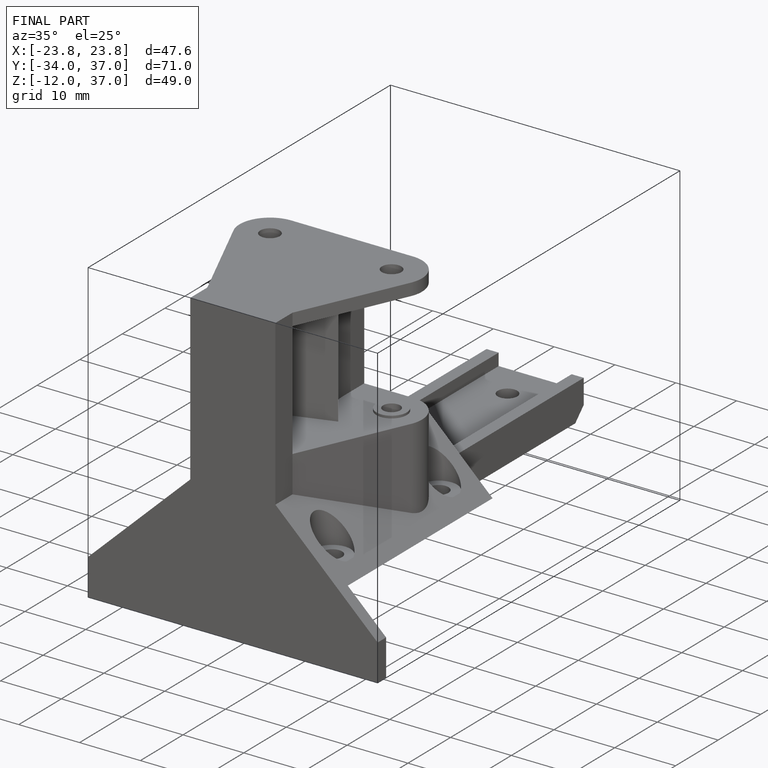
[diagram: finished part — iso view with bounding-box wireframe]
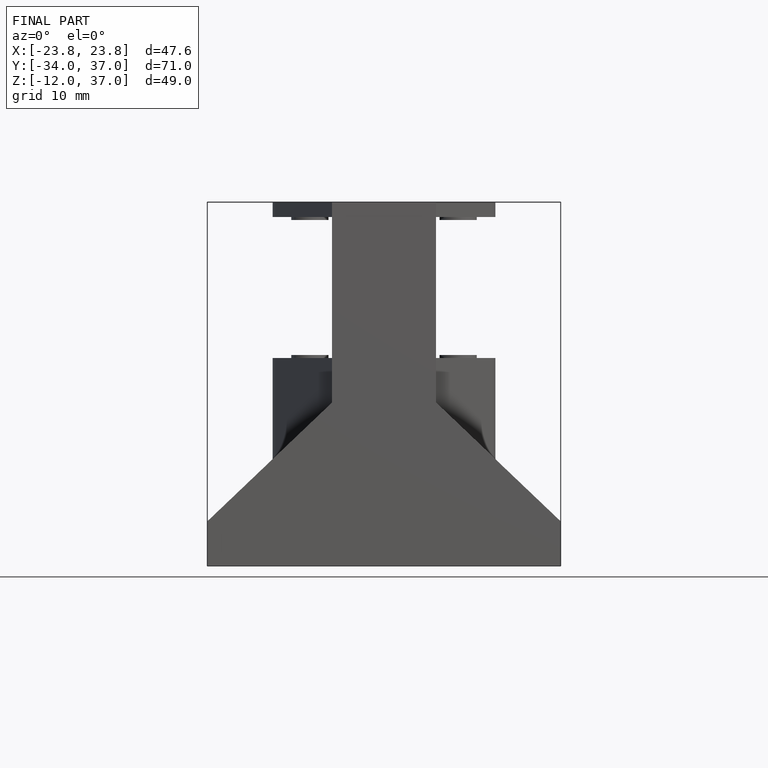
[diagram: finished part — front view with bounding-box wireframe]
